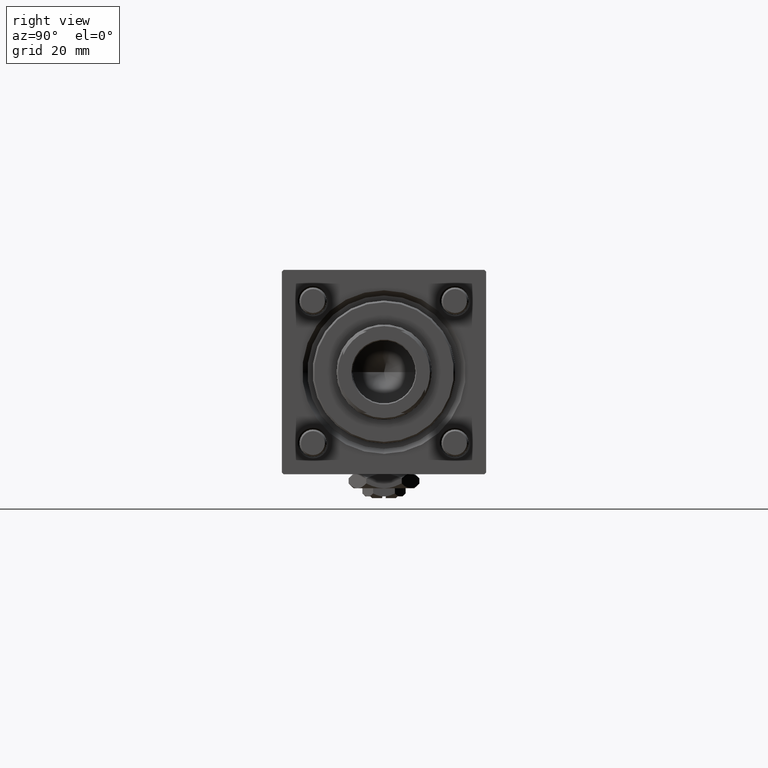
[diagram: clean part render]
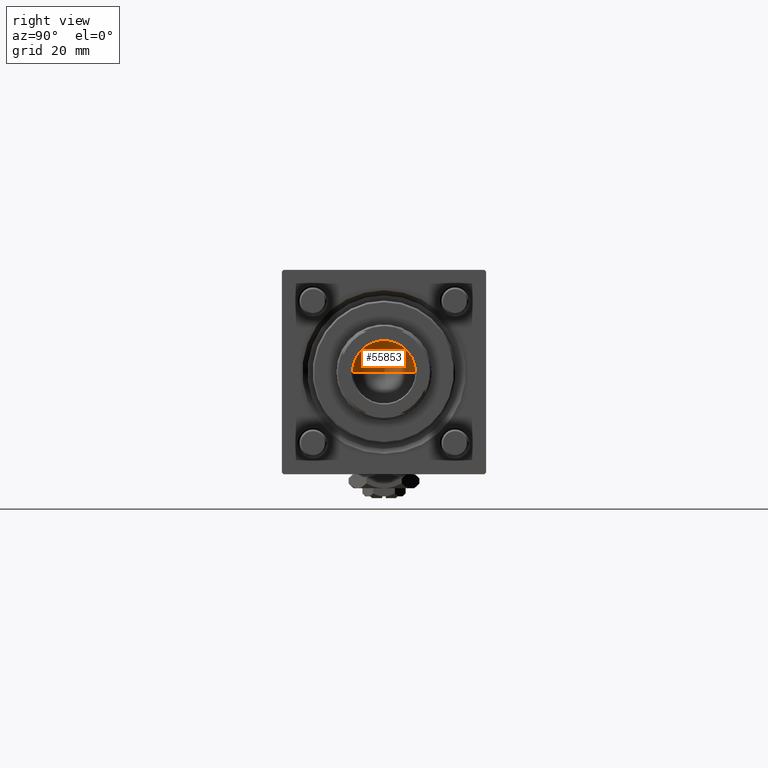
[diagram: same view with one face highlighted and labeled with its STEP entity id]
A machine part, right view. The second image highlights one B-rep face of the part: STEP entity #55853.
In plain terms, the highlighted conical surface has half-angle 59 deg.
Its self-contained STEP definition (entity closure, byte-faithful):
#3287 = DIRECTION ( 'NONE',  ( -0.000000000000000000, -0.000000000000000000, 1.000000000000000000 ) ) ;
#3426 = CARTESIAN_POINT ( 'NONE',  ( 9.249999999999992895, 0.000000000000000000, 101.0000000000000000 ) ) ;
#4253 = CARTESIAN_POINT ( 'NONE',  ( -9.249999999999992895, 1.132798289211300712E-15, 101.0000000000000000 ) ) ;
#7829 = VERTEX_POINT ( 'NONE', #3426 ) ;
#11591 = DIRECTION ( 'NONE',  ( 1.000000000000000000, 0.000000000000000000, 0.000000000000000000 ) ) ;
#12866 = LINE ( 'NONE', #58133, #42349 ) ;
#14943 = DIRECTION ( 'NONE',  ( -0.000000000000000000, -0.000000000000000000, 1.000000000000000000 ) ) ;
#15390 = CARTESIAN_POINT ( 'NONE',  ( -9.769621978240258809E-15, 0.000000000000000000, 95.44203927399506426 ) ) ;
#21971 = ORIENTED_EDGE ( 'NONE', *, *, #35546, .F. ) ;
#22703 = CIRCLE ( 'NONE', #52025, 9.249999999999992895 ) ;
#22731 = LINE ( 'NONE', #53510, #55515 ) ;
#26100 = CARTESIAN_POINT ( 'NONE',  ( 0.000000000000000000, 0.000000000000000000, 101.0000000000000000 ) ) ;
#32728 = DIRECTION ( 'NONE',  ( 1.000000000000000000, 0.000000000000000000, 0.000000000000000000 ) ) ;
#33045 = EDGE_CURVE ( 'NONE', #44137, #7829, #22703, .T. ) ;
#35461 = ORIENTED_EDGE ( 'NONE', *, *, #37434, .T. ) ;
#35546 = EDGE_CURVE ( 'NONE', #55098, #7829, #22731, .T. ) ;
#37007 = EDGE_LOOP ( 'NONE', ( #21971, #35461, #54095 ) ) ;
#37434 = EDGE_CURVE ( 'NONE', #55098, #44137, #12866, .T. ) ;
#42349 = VECTOR ( 'NONE', #45419, 1000.000000000000000 ) ;
#43577 = FACE_OUTER_BOUND ( 'NONE', #37007, .T. ) ;
#44137 = VERTEX_POINT ( 'NONE', #4253 ) ;
#45419 = DIRECTION ( 'NONE',  ( -0.8571673007021117785, 1.049727191138617956E-16, 0.5150380749100550437 ) ) ;
#49387 = DIRECTION ( 'NONE',  ( 0.8571673007021117785, 0.000000000000000000, 0.5150380749100550437 ) ) ;
#49408 = AXIS2_PLACEMENT_3D ( 'NONE', #26100, #3287, #11591 ) ;
#51061 = CARTESIAN_POINT ( 'NONE',  ( 0.000000000000000000, 0.000000000000000000, 101.0000000000000000 ) ) ;
#52025 = AXIS2_PLACEMENT_3D ( 'NONE', #51061, #14943, #32728 ) ;
#53510 = CARTESIAN_POINT ( 'NONE',  ( 9.249999999999992895, 0.000000000000000000, 101.0000000000000000 ) ) ;
#54095 = ORIENTED_EDGE ( 'NONE', *, *, #33045, .T. ) ;
#54120 = CONICAL_SURFACE ( 'NONE', #49408, 9.249999999999992895, 1.029744258676653423 ) ;
#55098 = VERTEX_POINT ( 'NONE', #15390 ) ;
#55515 = VECTOR ( 'NONE', #49387, 1000.000000000000000 ) ;
#55853 = ADVANCED_FACE ( 'NONE', ( #43577 ), #54120, .F. ) ;
#58133 = CARTESIAN_POINT ( 'NONE',  ( -9.249999999999992895, 1.132798289211300712E-15, 101.0000000000000000 ) ) ;